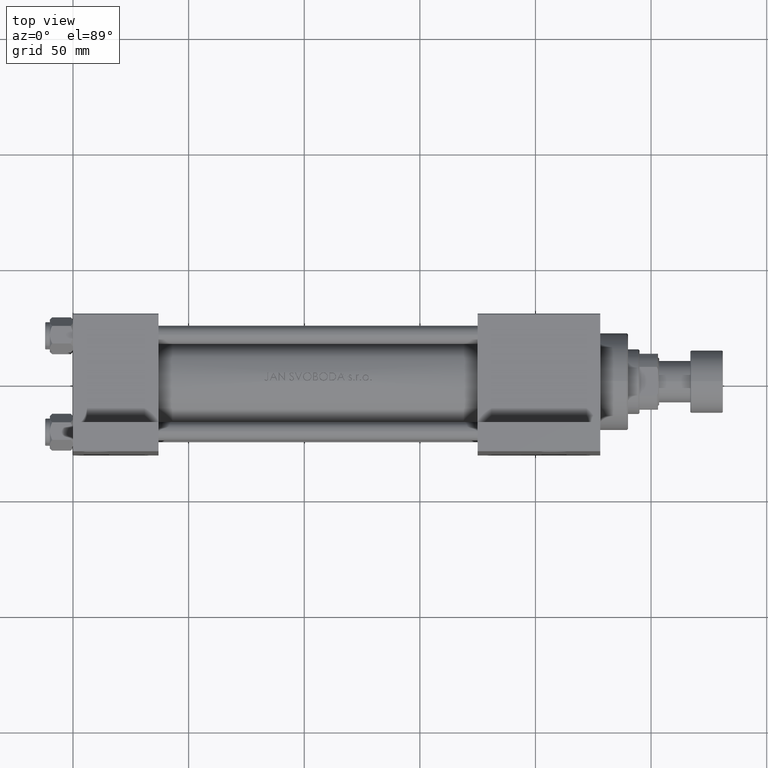
[diagram: clean part render]
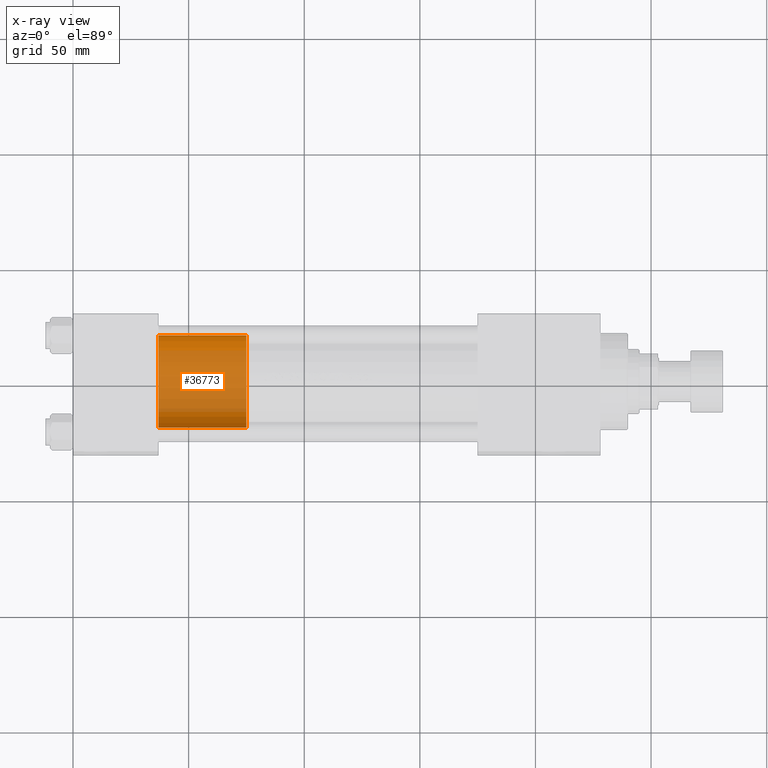
[diagram: x-ray — body ghosted, one internal face saturated and labeled with its STEP entity id]
A machine part, top view, then the same camera in x-ray: the body is ghosted and one INTERNAL B-rep face — a face not visible from any outside direction — is saturated and labeled: STEP entity #36773.
In plain terms, the highlighted cylindrical surface (partial cylindrical patch) has radius 20 mm, axis along (-1, 0, 0).
Its self-contained STEP definition (entity closure, byte-faithful):
#127 = DIRECTION ( 'NONE',  ( -1.000000000000000000, 0.000000000000000000, 0.000000000000000000 ) ) ;
#1904 = DIRECTION ( 'NONE',  ( 1.000000000000000000, 0.000000000000000000, 0.000000000000000000 ) ) ;
#5473 = VERTEX_POINT ( 'NONE', #31952 ) ;
#5877 = EDGE_LOOP ( 'NONE', ( #32795, #18488, #43495, #33491 ) ) ;
#6928 = CARTESIAN_POINT ( 'NONE',  ( 0.000000000000000000, 0.000000000000000000, 38.00000000000000000 ) ) ;
#9606 = VERTEX_POINT ( 'NONE', #22092 ) ;
#10684 = EDGE_CURVE ( 'NONE', #34266, #9606, #32351, .T. ) ;
#15837 = CIRCLE ( 'NONE', #25926, 20.00000000000000000 ) ;
#16497 = CARTESIAN_POINT ( 'NONE',  ( 0.000000000000000000, 0.000000000000000000, 0.000000000000000000 ) ) ;
#17985 = DIRECTION ( 'NONE',  ( -0.000000000000000000, -0.000000000000000000, -1.000000000000000000 ) ) ;
#18488 = ORIENTED_EDGE ( 'NONE', *, *, #23827, .T. ) ;
#19991 = CARTESIAN_POINT ( 'NONE',  ( -20.00000000000000000, 0.000000000000000000, 38.00000000000000000 ) ) ;
#20346 = FACE_OUTER_BOUND ( 'NONE', #5877, .T. ) ;
#21276 = VECTOR ( 'NONE', #17985, 1000.000000000000000 ) ;
#21397 = CARTESIAN_POINT ( 'NONE',  ( 20.00000000000000000, 2.449293598294706513E-15, 38.00000000000000000 ) ) ;
#22092 = CARTESIAN_POINT ( 'NONE',  ( -20.00000000000000000, 0.000000000000000000, 0.000000000000000000 ) ) ;
#22801 = VERTEX_POINT ( 'NONE', #41861 ) ;
#23757 = EDGE_CURVE ( 'NONE', #22801, #5473, #15837, .T. ) ;
#23827 = EDGE_CURVE ( 'NONE', #22801, #34266, #43751, .T. ) ;
#25926 = AXIS2_PLACEMENT_3D ( 'NONE', #39169, #28697, #43525 ) ;
#27513 = DIRECTION ( 'NONE',  ( -0.000000000000000000, -0.000000000000000000, -1.000000000000000000 ) ) ;
#28697 = DIRECTION ( 'NONE',  ( 0.000000000000000000, 0.000000000000000000, 1.000000000000000000 ) ) ;
#31768 = CYLINDRICAL_SURFACE ( 'NONE', #44882, 20.00000000000000000 ) ;
#31952 = CARTESIAN_POINT ( 'NONE',  ( -20.00000000000000000, 0.000000000000000000, 38.00000000000000000 ) ) ;
#32351 = CIRCLE ( 'NONE', #40099, 20.00000000000000000 ) ;
#32795 = ORIENTED_EDGE ( 'NONE', *, *, #23757, .F. ) ;
#33491 = ORIENTED_EDGE ( 'NONE', *, *, #45954, .F. ) ;
#34266 = VERTEX_POINT ( 'NONE', #47287 ) ;
#35699 = VECTOR ( 'NONE', #27513, 1000.000000000000000 ) ;
#36773 = ADVANCED_FACE ( 'NONE', ( #20346 ), #31768, .T. ) ;
#39169 = CARTESIAN_POINT ( 'NONE',  ( 0.000000000000000000, 0.000000000000000000, 38.00000000000000000 ) ) ;
#40099 = AXIS2_PLACEMENT_3D ( 'NONE', #16497, #46153, #1904 ) ;
#41861 = CARTESIAN_POINT ( 'NONE',  ( 20.00000000000000000, 2.449293598294706513E-15, 38.00000000000000000 ) ) ;
#43495 = ORIENTED_EDGE ( 'NONE', *, *, #10684, .T. ) ;
#43525 = DIRECTION ( 'NONE',  ( 1.000000000000000000, 0.000000000000000000, 0.000000000000000000 ) ) ;
#43751 = LINE ( 'NONE', #21397, #21276 ) ;
#44882 = AXIS2_PLACEMENT_3D ( 'NONE', #6928, #47777, #127 ) ;
#45265 = LINE ( 'NONE', #19991, #35699 ) ;
#45954 = EDGE_CURVE ( 'NONE', #5473, #9606, #45265, .T. ) ;
#46153 = DIRECTION ( 'NONE',  ( 0.000000000000000000, 0.000000000000000000, 1.000000000000000000 ) ) ;
#47287 = CARTESIAN_POINT ( 'NONE',  ( 20.00000000000000000, 2.449293598294706513E-15, 0.000000000000000000 ) ) ;
#47777 = DIRECTION ( 'NONE',  ( -0.000000000000000000, -0.000000000000000000, -1.000000000000000000 ) ) ;